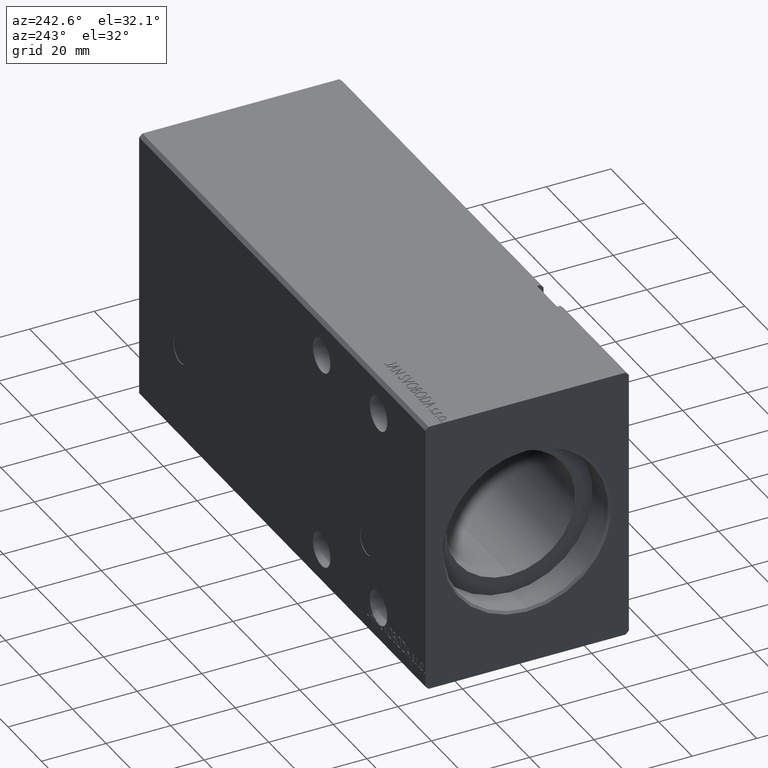
[diagram: clean part render]
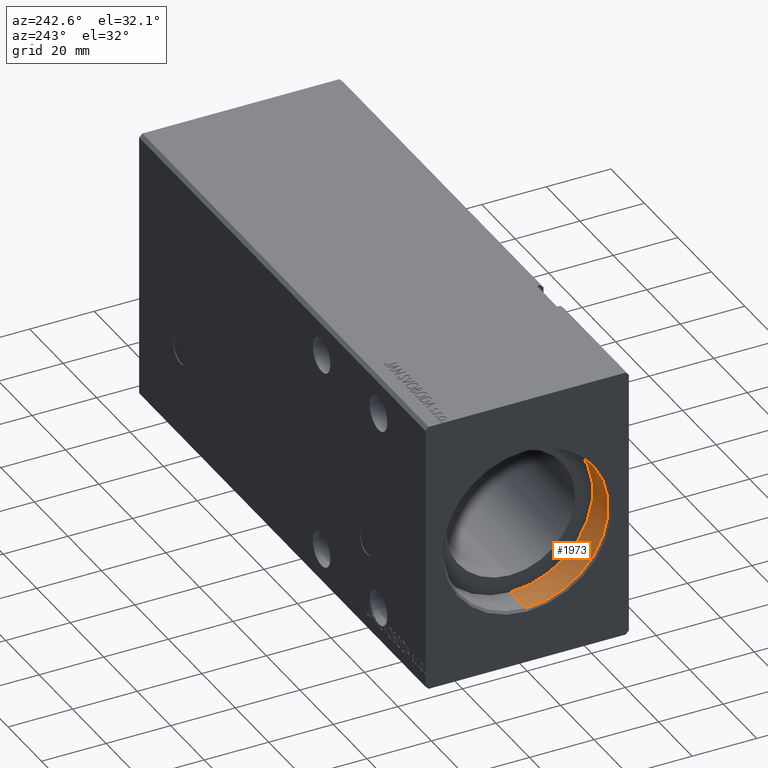
[diagram: same view with one face highlighted and labeled with its STEP entity id]
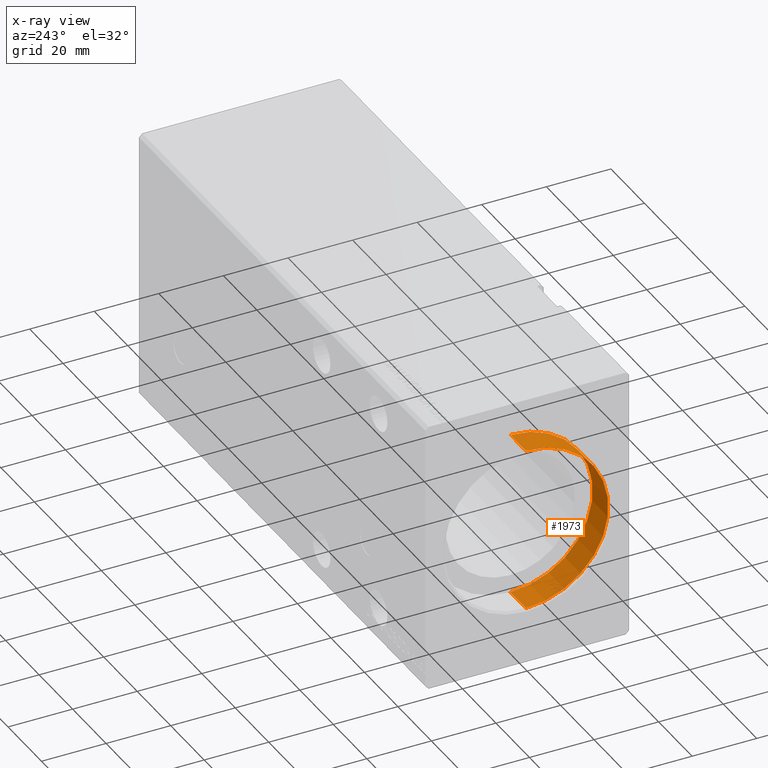
[diagram: x-ray of the same camera — body ghosted, the highlighted face saturated]
A machine part, auxiliary view. The second image highlights one B-rep face of the part: STEP entity #1973.
The next image is the same camera in x-ray: the body ghosted, the highlighted face saturated — about 0% of this face is hidden behind the body in this view.
In plain terms, the highlighted cylindrical surface (partial cylindrical patch) has radius 25.5 mm, axis along (-1, -0, -0).
Its self-contained STEP definition (entity closure, byte-faithful):
#19 = ORIENTED_EDGE ( 'NONE', *, *, #24871, .F. ) ;
#250 = CARTESIAN_POINT ( 'NONE',  ( 10.00000000000000000, 3.122849337825750222E-15, -25.50000000000000000 ) ) ;
#1973 = ADVANCED_FACE ( 'NONE', ( #33085 ), #4925, .F. ) ;
#3296 = AXIS2_PLACEMENT_3D ( 'NONE', #17452, #14158, #36367 ) ;
#3802 = CIRCLE ( 'NONE', #35945, 25.50000000000000000 ) ;
#4809 = EDGE_CURVE ( 'NONE', #18337, #40386, #16654, .T. ) ;
#4925 = CYLINDRICAL_SURFACE ( 'NONE', #3296, 25.50000000000000000 ) ;
#5322 = DIRECTION ( 'NONE',  ( 0.000000000000000000, 0.000000000000000000, -1.000000000000000000 ) ) ;
#7309 = DIRECTION ( 'NONE',  ( -1.000000000000000000, -0.000000000000000000, -0.000000000000000000 ) ) ;
#9437 = AXIS2_PLACEMENT_3D ( 'NONE', #34027, #34227, #27252 ) ;
#10180 = CARTESIAN_POINT ( 'NONE',  ( 10.00000000000000000, 0.000000000000000000, 25.50000000000000000 ) ) ;
#10371 = DIRECTION ( 'NONE',  ( -1.000000000000000000, -0.000000000000000000, -0.000000000000000000 ) ) ;
#13467 = LINE ( 'NONE', #23135, #35746 ) ;
#13709 = ORIENTED_EDGE ( 'NONE', *, *, #39096, .T. ) ;
#14158 = DIRECTION ( 'NONE',  ( -1.000000000000000000, -0.000000000000000000, -0.000000000000000000 ) ) ;
#14578 = VERTEX_POINT ( 'NONE', #39539 ) ;
#15988 = EDGE_CURVE ( 'NONE', #18337, #38917, #38937, .T. ) ;
#16654 = CIRCLE ( 'NONE', #9437, 25.50000000000000000 ) ;
#17452 = CARTESIAN_POINT ( 'NONE',  ( 10.00000000000000000, 0.000000000000000000, 0.000000000000000000 ) ) ;
#17655 = DIRECTION ( 'NONE',  ( -1.000000000000000000, 0.000000000000000000, 0.000000000000000000 ) ) ;
#18337 = VERTEX_POINT ( 'NONE', #250 ) ;
#20143 = CARTESIAN_POINT ( 'NONE',  ( 0.7000000000000061728, 0.000000000000000000, 0.000000000000000000 ) ) ;
#21197 = CARTESIAN_POINT ( 'NONE',  ( 0.7000000000000061728, 3.122849337825750222E-15, -25.50000000000000000 ) ) ;
#23135 = CARTESIAN_POINT ( 'NONE',  ( 10.00000000000000000, 0.000000000000000000, 25.50000000000000000 ) ) ;
#24444 = ORIENTED_EDGE ( 'NONE', *, *, #15988, .T. ) ;
#24871 = EDGE_CURVE ( 'NONE', #40386, #14578, #13467, .T. ) ;
#27252 = DIRECTION ( 'NONE',  ( 0.000000000000000000, 0.000000000000000000, 1.000000000000000000 ) ) ;
#29141 = EDGE_LOOP ( 'NONE', ( #36225, #24444, #13709, #19 ) ) ;
#31092 = VECTOR ( 'NONE', #10371, 1000.000000000000000 ) ;
#33085 = FACE_OUTER_BOUND ( 'NONE', #29141, .T. ) ;
#34027 = CARTESIAN_POINT ( 'NONE',  ( 10.00000000000000000, 0.000000000000000000, 0.000000000000000000 ) ) ;
#34227 = DIRECTION ( 'NONE',  ( -1.000000000000000000, 0.000000000000000000, 0.000000000000000000 ) ) ;
#35746 = VECTOR ( 'NONE', #7309, 1000.000000000000000 ) ;
#35945 = AXIS2_PLACEMENT_3D ( 'NONE', #20143, #17655, #5322 ) ;
#36225 = ORIENTED_EDGE ( 'NONE', *, *, #4809, .F. ) ;
#36367 = DIRECTION ( 'NONE',  ( 0.000000000000000000, 0.000000000000000000, 1.000000000000000000 ) ) ;
#38734 = CARTESIAN_POINT ( 'NONE',  ( 10.00000000000000000, 3.122849337825750222E-15, -25.50000000000000000 ) ) ;
#38917 = VERTEX_POINT ( 'NONE', #21197 ) ;
#38937 = LINE ( 'NONE', #38734, #31092 ) ;
#39096 = EDGE_CURVE ( 'NONE', #38917, #14578, #3802, .T. ) ;
#39539 = CARTESIAN_POINT ( 'NONE',  ( 0.7000000000000061728, 0.000000000000000000, 25.50000000000000000 ) ) ;
#40386 = VERTEX_POINT ( 'NONE', #10180 ) ;